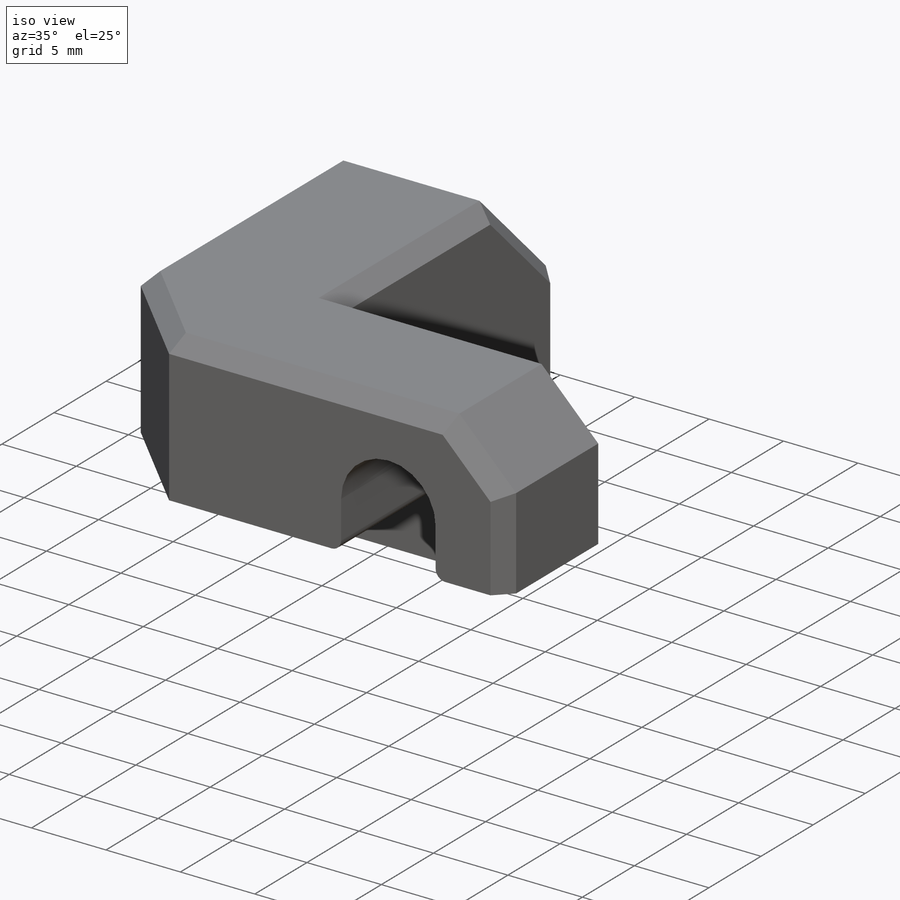
[diagram: iso view]
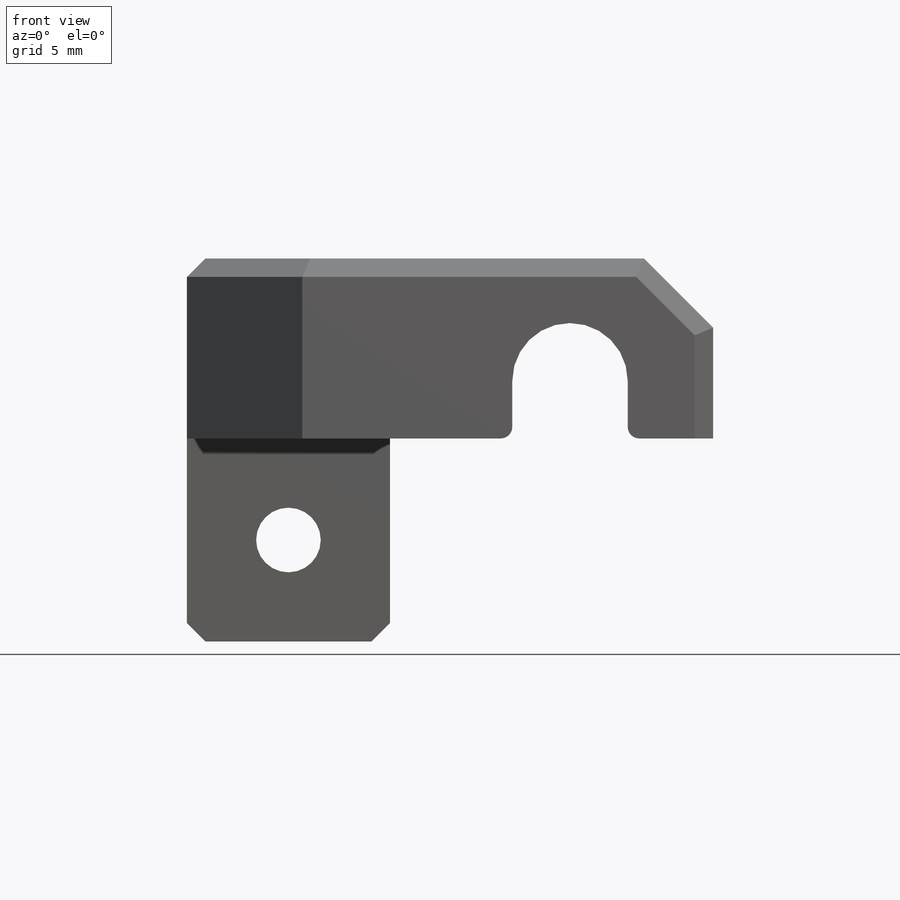
[diagram: front view]
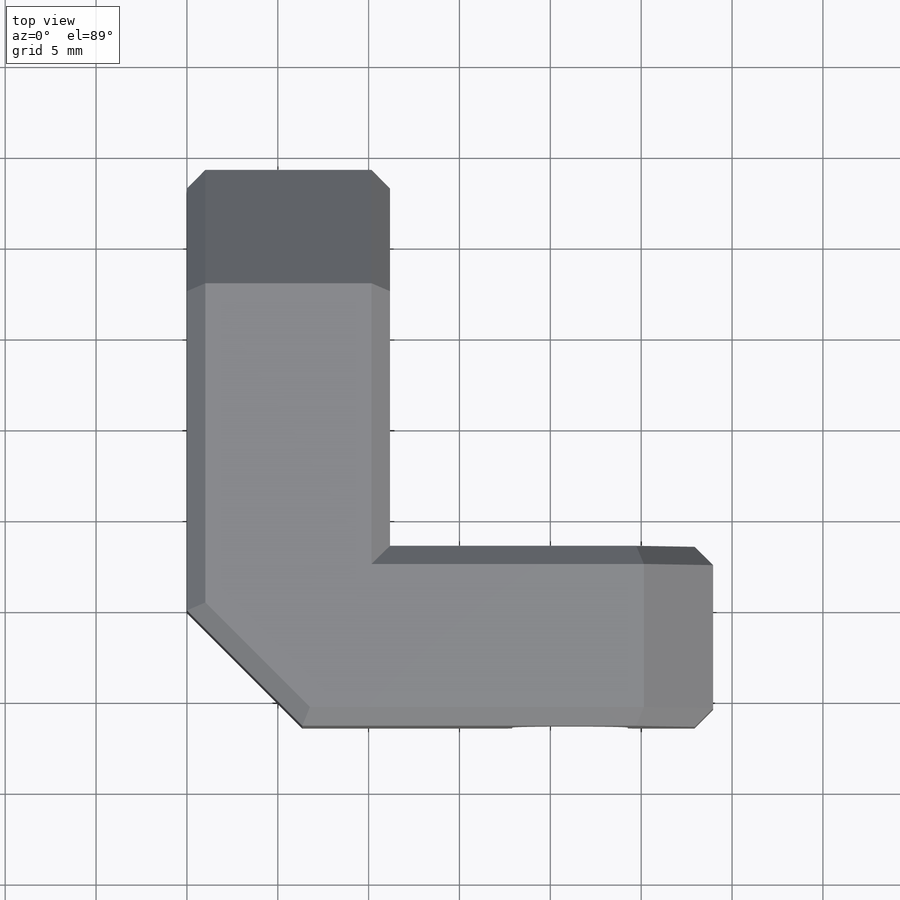
[diagram: top view]
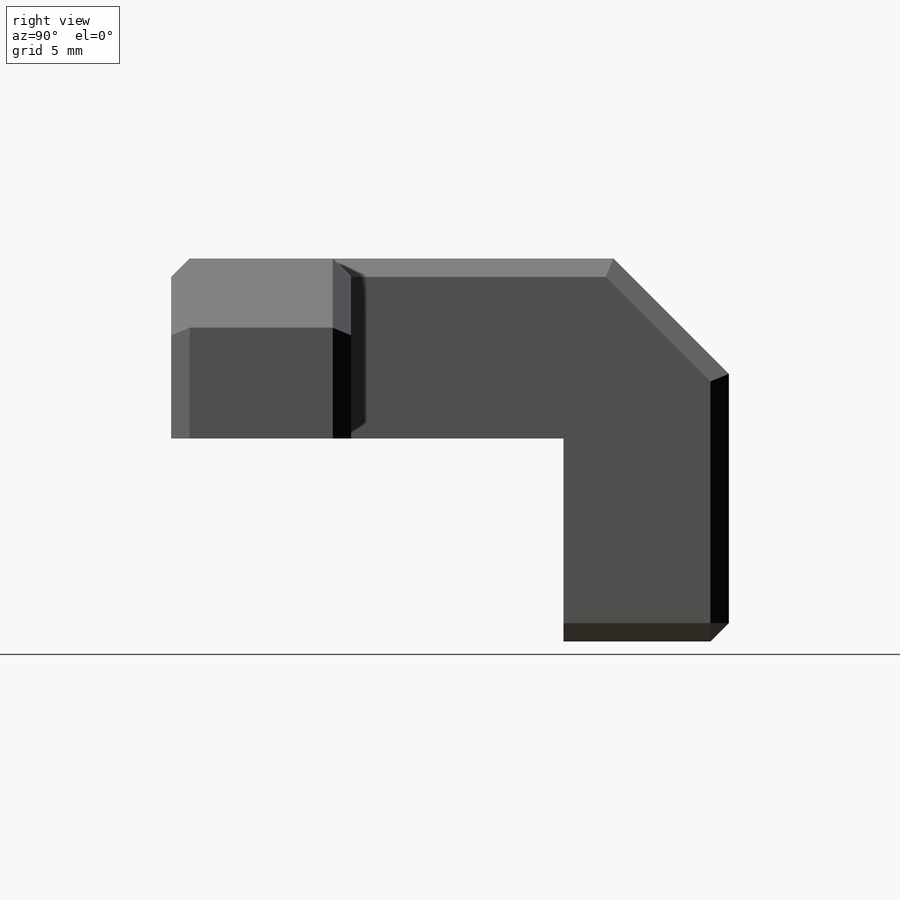
[diagram: right view]
SOLIDWORKS PART (.sldprt)
format: sldprt  version: not decoded by parser v0  size: 283,648 bytes
history: native  units: mm
features: sketch x5, chamfer x5, cut_extrude x3, extrude x2, material x1, fillet x1 (+12 scaffold rows collapsed)
feature tree (29):
  scaffold x12  (default folders/planes/origin — collapsed)
  material  "Material <not specified>"
  sketch  "Sketch1"  dims[D1=9.144mm D2=11.176mm D3=9.906mm D4=21.59mm]
  extrude  "Boss-Extrude1"  Depth=11.176mm
  sketch  "Sketch2"  dims[D1=9.906mm]
  extrude  "Boss-Extrude2"  Depth=17.78mm
  sketch  "Sketch3"  dims[c1.D1=~1.78862mm c1.D3=13.589mm c2.D1=20.32mm c2.D2=3.175mm c3.D1=9.906mm]
  cut_extrude  "Cut-Extrude1"  [1 undecoded]
  sketch  "Sketch4"  dims[c1.D1=~1.780476mm c1.D3=1.7272mm c2.D1=5.588mm c2.D2=5.588mm]
  cut_extrude  "Cut-Extrude2"  [1 undecoded]
  sketch  "Sketch5"  dims[D1=~2.855995mm]
  cut_extrude  "Cut-Extrude3"  Depth=3.556mm
  fillet  "Fillet8"  Radius=0.635mm
  chamfer  "Chamfer1"  Distance=6.35mm Angle=45deg
  chamfer  "Chamfer2"  Distance=6.35mm Angle=45deg
  chamfer  "Chamfer3"  Distance=3.81mm Angle=45deg
  chamfer  "Chamfer4"  Distance=1.016mm Angle=45deg
  chamfer  "Chamfer5"  Distance=1.016mm Angle=45deg
decode coverage: 14 of 16 modeling features carry decoded parameters
note: ~ marks probable driven/reference dimensions
note: 2 parameter values undecoded
note: suppression state not decoded; provenance and decode notes live in map.json
